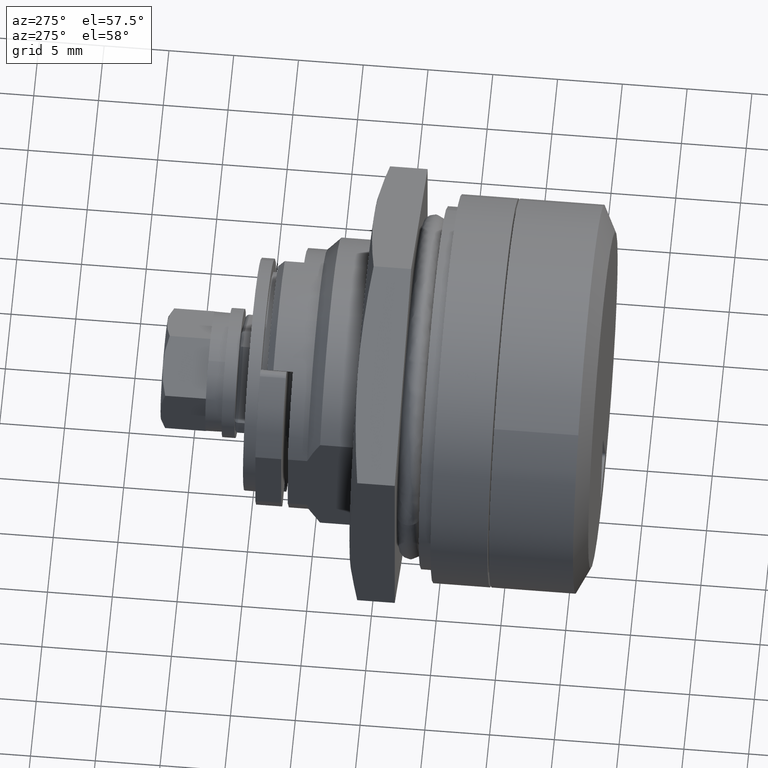
[diagram: clean part render]
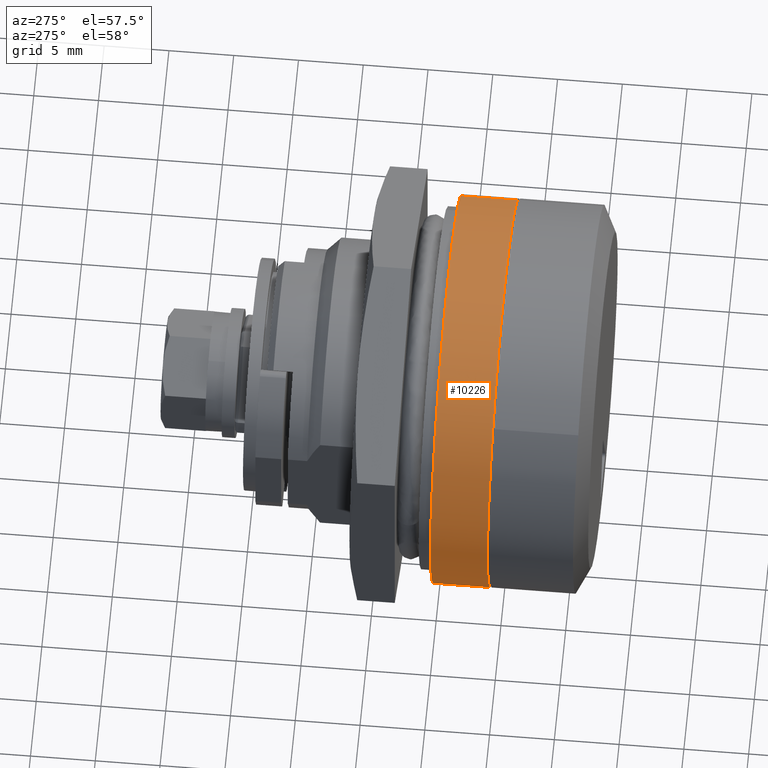
[diagram: same view with one face highlighted and labeled with its STEP entity id]
A machine part, auxiliary view. The second image highlights one B-rep face of the part: STEP entity #10226.
In plain terms, the highlighted face is a freeform B-spline surface patch.
Its self-contained STEP definition (entity closure, byte-faithful):
#10057=CARTESIAN_POINT('',(0.110000000000000,-11.453334644106969,9.686130575730378));
#10058=CARTESIAN_POINT('',(0.110000000000000,-11.176121748472719,10.013920092559346));
#10059=CARTESIAN_POINT('',(0.110000000000000,-10.880615565184311,10.325318635406310));
#10060=CARTESIAN_POINT('',(0.110000000000000,-0.555296929778004,21.205934200590622));
#10061=CARTESIAN_POINT('',(0.110000000000000,10.325318635406310,10.880615565184311));
#10062=CARTESIAN_POINT('',(0.110000000000000,21.205934200590622,0.555296929778004));
#10063=CARTESIAN_POINT('',(0.110000000000000,10.880615565184311,-10.325318635406310));
#10064=CARTESIAN_POINT('',(0.110000000000000,0.555296929778004,-21.205934200590622));
#10065=CARTESIAN_POINT('',(0.110000000000000,-10.325318635406310,-10.880615565184311));
#10066=CARTESIAN_POINT('',(-4.512750000000094,-11.453334644106969,9.686130575730378));
#10067=CARTESIAN_POINT('',(-4.512750000000093,-11.176121748472719,10.013920092559346));
#10068=CARTESIAN_POINT('',(-4.512750000000093,-10.880615565184311,10.325318635406310));
#10069=CARTESIAN_POINT('',(-4.512750000000093,-0.555296929778004,21.205934200590622));
#10070=CARTESIAN_POINT('',(-4.512750000000093,10.325318635406310,10.880615565184311));
#10071=CARTESIAN_POINT('',(-4.512750000000093,21.205934200590622,0.555296929778004));
#10072=CARTESIAN_POINT('',(-4.512750000000093,10.880615565184311,-10.325318635406310));
#10073=CARTESIAN_POINT('',(-4.512750000000093,0.555296929778004,-21.205934200590622));
#10074=CARTESIAN_POINT('',(-4.512750000000093,-10.325318635406310,-10.880615565184311));
#10082=(BOUNDED_SURFACE()B_SPLINE_SURFACE(2,1,((#10057,#10066),(#10058,#10067),(#10059,#10068),(#10060,#10069),(#10061,#10070),(#10062,#10071),(#10063,#10072),(#10064,#10073),(#10065,#10074)),.UNSPECIFIED.,.F.,.F.,.U.)B_SPLINE_SURFACE_WITH_KNOTS((3,2,2,2,3),(2,2),(0.0,0.994112549695429,25.846926292081129,50.699740034466821,75.552553776852506),(0.0,4.622750000000093),.UNSPECIFIED.)GEOMETRIC_REPRESENTATION_ITEM()RATIONAL_B_SPLINE_SURFACE(((0.977505800795127,0.977505800795127),(0.988284271247462,0.988284271247462),(1.0,1.0),(0.707106781186548,0.707106781186548),(1.0,1.0),(0.707106781186548,0.707106781186548),(1.0,1.0),(0.707106781186548,0.707106781186548),(1.0,1.0)))REPRESENTATION_ITEM('')SURFACE());
#10083=CARTESIAN_POINT('',(5.501527E-012,-11.453334942280440,9.686130766238883));
#10084=VERTEX_POINT('',#10083);
#10085=CARTESIAN_POINT('',(-2.755364E-015,0.0,15.0));
#10086=VERTEX_POINT('',#10085);
#10087=CARTESIAN_POINT('',(5.501527E-012,-11.453334942280440,9.686130766238883));
#10088=CARTESIAN_POINT('',(5.196148E-012,-10.817901486712540,10.437714305985420));
#10089=CARTESIAN_POINT('',(4.631522E-012,-9.643024702068196,11.577478154986769));
#10090=CARTESIAN_POINT('',(3.678727E-012,-7.660444631017903,12.955721269076360));
#10091=CARTESIAN_POINT('',(2.611277E-012,-5.439290175112173,14.070099384794521));
#10092=CARTESIAN_POINT('',(1.350964E-012,-2.816825873974941,14.828908261293000));
#10093=CARTESIAN_POINT('',(4.212993E-013,-0.882374870173961,15.000056497714670));
#10094=CARTESIAN_POINT('',(-2.755364E-015,0.0,15.0));
#10095=B_SPLINE_CURVE_WITH_KNOTS('',3,(#10087,#10088,#10089,#10090,#10091,#10092,#10093,#10094),.UNSPECIFIED.,.F.,.U.,(4,1,1,1,1,4),(0.000000021767436,2.952572827706318,4.887019982530774,7.228697114346827,10.384917896650590,13.032049557032190),.UNSPECIFIED.);
#10096=EDGE_CURVE('',#10084,#10086,#10095,.T.);
#10097=ORIENTED_EDGE('',*,*,#10096,.T.);
#10098=CARTESIAN_POINT('',(-2.755364E-015,14.999999999999931,-0.000001422510295));
#10099=VERTEX_POINT('',#10098);
#10100=CARTESIAN_POINT('',(-2.755364E-015,0.0,15.0));
#10101=CARTESIAN_POINT('',(-2.755364E-015,1.043112721479608,15.000144473828490));
#10102=CARTESIAN_POINT('',(-2.755364E-015,2.853149161251206,14.810414392537620));
#10103=CARTESIAN_POINT('',(-2.755364E-015,5.097109738955573,14.152143033870750));
#10104=CARTESIAN_POINT('',(-2.755364E-015,7.093930864481921,13.274363346806510));
#10105=CARTESIAN_POINT('',(-2.755364E-015,8.952233015415089,12.121484904672080));
#10106=CARTESIAN_POINT('',(-2.755364E-015,10.616331070383559,10.658981236510080));
#10107=CARTESIAN_POINT('',(-2.755364E-015,11.990756031830299,9.085282683752549));
#10108=CARTESIAN_POINT('',(-2.755364E-015,13.045778174913449,7.495821551941543));
#10109=CARTESIAN_POINT('',(-2.755364E-015,13.903020431307731,5.725609447301996));
#10110=CARTESIAN_POINT('',(-2.755364E-015,14.472976241343890,4.068866168773899));
#10111=CARTESIAN_POINT('',(-2.755364E-015,14.892050764833620,2.147546736600627));
#10112=CARTESIAN_POINT('',(-2.755364E-015,15.000059246009229,0.797668352178280));
#10113=CARTESIAN_POINT('',(-2.755364E-015,14.999999999999931,-0.000001422510295));
#10114=B_SPLINE_CURVE_WITH_KNOTS('',3,(#10100,#10101,#10102,#10103,#10104,#10105,#10106,#10107,#10108,#10109,#10110,#10111,#10112,#10113),.UNSPECIFIED.,.F.,.U.,(4,1,1,1,1,1,1,1,1,1,1,4),(0.000000062564261,3.129314197939024,5.430299691726805,6.994972318430438,9.664109063514829,11.965048990248979,13.621742754649830,15.922733961731190,17.671488051383690,19.512280872478009,21.168981380407349,23.561982665529861),.UNSPECIFIED.);
#10115=EDGE_CURVE('',#10086,#10099,#10114,.T.);
#10116=ORIENTED_EDGE('',*,*,#10115,.T.);
#10117=CARTESIAN_POINT('',(-2.755364E-015,0.0,-15.0));
#10118=VERTEX_POINT('',#10117);
#10119=CARTESIAN_POINT('',(-2.755364E-015,14.999999999999931,-0.000001422510295));
#10120=CARTESIAN_POINT('',(-2.755364E-015,15.000090257828351,-0.889711632567073));
#10121=CARTESIAN_POINT('',(-2.755364E-015,14.876775912695420,-2.270249516024686));
#10122=CARTESIAN_POINT('',(-2.755364E-015,14.399745594940500,-4.335324843317125));
#10123=CARTESIAN_POINT('',(-2.755364E-015,13.767268442571030,-6.069357613622124));
#10124=CARTESIAN_POINT('',(-2.755364E-015,12.879224925939919,-7.755528728333514));
#10125=CARTESIAN_POINT('',(-2.755364E-015,11.784118415083141,-9.351740116949021));
#10126=CARTESIAN_POINT('',(-2.755364E-015,10.322012542977941,-10.975008701289250));
#10127=CARTESIAN_POINT('',(-2.755364E-015,8.663151670127082,-12.302626194554980));
#10128=CARTESIAN_POINT('',(-2.755364E-015,6.818866053069606,-13.408018789397550));
#10129=CARTESIAN_POINT('',(-2.755364E-015,4.759347689742931,-14.305983288163469));
#10130=CARTESIAN_POINT('',(-2.755364E-015,2.362328980180929,-14.882970814177661));
#10131=CARTESIAN_POINT('',(-2.755364E-015,0.705620423915510,-15.000014237178711));
#10132=CARTESIAN_POINT('',(-2.755364E-015,0.0,-15.0));
#10133=B_SPLINE_CURVE_WITH_KNOTS('',3,(#10119,#10120,#10121,#10122,#10123,#10124,#10125,#10126,#10127,#10128,#10129,#10130,#10131,#10132),.UNSPECIFIED.,.F.,.U.,(4,1,1,1,1,1,1,1,1,1,1,4),(0.000000062627489,2.669108664335695,4.141743175538270,6.350693645249322,8.191479170864472,9.848174142569471,12.149113704570491,14.726226291334690,16.198858691282879,18.591879602525349,21.445110840149450,23.561981062026891),.UNSPECIFIED.);
#10134=EDGE_CURVE('',#10099,#10118,#10133,.T.);
#10135=ORIENTED_EDGE('',*,*,#10134,.T.);
#10136=CARTESIAN_POINT('',(-5.329643E-012,-10.325318353570299,-10.880615343041020));
#10137=VERTEX_POINT('',#10136);
#10138=CARTESIAN_POINT('',(-2.755364E-015,0.0,-15.0));
#10139=CARTESIAN_POINT('',(-4.311629E-013,-0.830399248749804,-15.000065821979140));
#10140=CARTESIAN_POINT('',(-1.119660E-012,-2.164940252950626,-14.888877744297400));
#10141=CARTESIAN_POINT('',(-2.092187E-012,-4.050028708363543,-14.474249417646631));
#10142=CARTESIAN_POINT('',(-3.021398E-012,-5.851155091850223,-13.864960591170011));
#10143=CARTESIAN_POINT('',(-4.159771E-012,-8.057708811160328,-12.756274385722810));
#10144=CARTESIAN_POINT('',(-4.930163E-012,-9.550990135608052,-11.615683931711921));
#10145=CARTESIAN_POINT('',(-5.329643E-012,-10.325318353570299,-10.880615343041020));
#10146=B_SPLINE_CURVE_WITH_KNOTS('',3,(#10138,#10139,#10140,#10141,#10142,#10143,#10144,#10145),.UNSPECIFIED.,.F.,.U.,(4,1,1,1,1,4),(0.000000015262774,2.491186251970984,4.003703874981415,5.783096003597441,8.185331182684706,11.388289876690120),.UNSPECIFIED.);
#10147=EDGE_CURVE('',#10118,#10137,#10146,.T.);
#10148=ORIENTED_EDGE('',*,*,#10147,.T.);
#10149=CARTESIAN_POINT('',(-4.400000000000091,-10.325318354013650,-10.880615342620301));
#10150=VERTEX_POINT('',#10149);
#10151=CARTESIAN_POINT('',(-5.329643E-012,-10.325318353570299,-10.880615343041020));
#10152=CARTESIAN_POINT('',(-4.400000000000091,-10.325318354013650,-10.880615342620301));
#10153=QUASI_UNIFORM_CURVE('',1,(#10151,#10152),.UNSPECIFIED.,.F.,.U.);
#10154=EDGE_CURVE('',#10137,#10150,#10153,.T.);
#10155=ORIENTED_EDGE('',*,*,#10154,.T.);
#10156=CARTESIAN_POINT('',(-4.400000000000090,0.0,-15.0));
#10157=VERTEX_POINT('',#10156);
#10158=CARTESIAN_POINT('',(-4.400000000000090,0.0,-15.0));
#10159=CARTESIAN_POINT('',(-4.400000000000095,-0.830398701765208,-15.000064743289020));
#10160=CARTESIAN_POINT('',(-4.400000000000065,-2.224254552945415,-14.883939242327060));
#10161=CARTESIAN_POINT('',(-4.400000000000109,-4.194363907206968,-14.438345801888300));
#10162=CARTESIAN_POINT('',(-4.400000000000111,-6.210635598955062,-13.722834831938330));
#10163=CARTESIAN_POINT('',(-4.400000000000036,-8.330293008214294,-12.569684059648379));
#10164=CARTESIAN_POINT('',(-4.400000000000140,-9.723006634521287,-11.452257100843889));
#10165=CARTESIAN_POINT('',(-4.400000000000091,-10.325318354013650,-10.880615342620301));
#10166=B_SPLINE_CURVE_WITH_KNOTS('',3,(#10158,#10159,#10160,#10161,#10162,#10163,#10164,#10165),.UNSPECIFIED.,.F.,.U.,(4,1,1,1,1,4),(0.000000015258678,2.491186252101599,4.181646110295810,6.050017554925931,8.897103640467570,11.388289877301350),.UNSPECIFIED.);
#10167=EDGE_CURVE('',#10157,#10150,#10166,.T.);
#10168=ORIENTED_EDGE('',*,*,#10167,.F.);
#10169=CARTESIAN_POINT('',(-4.400000000000090,14.999999999999931,-0.000001422510295));
#10170=VERTEX_POINT('',#10169);
#10171=CARTESIAN_POINT('',(-4.400000000000090,14.999999999999931,-0.000001422510295));
#10172=CARTESIAN_POINT('',(-4.400000000000080,15.000090070934871,-0.889711621880674));
#10173=CARTESIAN_POINT('',(-4.400000000000103,14.876776468265859,-2.270249549917439));
#10174=CARTESIAN_POINT('',(-4.400000000000080,14.399744594391191,-4.335324791751396));
#10175=CARTESIAN_POINT('',(-4.400000000000103,13.809426200558180,-5.953752243527472));
#10176=CARTESIAN_POINT('',(-4.400000000000061,12.872851552707360,-7.786319469064214));
#10177=CARTESIAN_POINT('',(-4.400000000000129,11.490976931848770,-9.787608525824604));
#10178=CARTESIAN_POINT('',(-4.400000000000065,9.480583475513177,-11.749287179219360));
#10179=CARTESIAN_POINT('',(-4.400000000000114,7.157437916729596,-13.260454886116801));
#10180=CARTESIAN_POINT('',(-4.400000000000239,5.041458839496981,-14.182904597532250));
#10181=CARTESIAN_POINT('',(-4.399999999999761,2.669062307327073,-14.831576640851940));
#10182=CARTESIAN_POINT('',(-4.400000000000492,1.012438914155633,-15.000159108389751));
#10183=CARTESIAN_POINT('',(-4.400000000000090,0.0,-15.0));
#10184=B_SPLINE_CURVE_WITH_KNOTS('',3,(#10171,#10172,#10173,#10174,#10175,#10176,#10177,#10178,#10179,#10180,#10181,#10182,#10183),.UNSPECIFIED.,.F.,.U.,(4,1,1,1,1,1,1,1,1,1,4),(0.000000062627489,2.669108664335695,4.141743175538270,6.350693645249322,7.823328528863511,10.308386206756200,13.621741827271929,16.198858691282879,18.591879602525349,20.524706105658531,23.561981062026891),.UNSPECIFIED.);
#10185=EDGE_CURVE('',#10170,#10157,#10184,.T.);
#10186=ORIENTED_EDGE('',*,*,#10185,.F.);
#10187=CARTESIAN_POINT('',(-4.400000000000090,0.0,15.0));
#10188=VERTEX_POINT('',#10187);
#10189=CARTESIAN_POINT('',(-4.400000000000090,0.0,15.0));
#10190=CARTESIAN_POINT('',(-4.400000000000087,1.043112721478718,15.000144473828399));
#10191=CARTESIAN_POINT('',(-4.400000000000100,2.853149161253899,14.810414392537909));
#10192=CARTESIAN_POINT('',(-4.400000000000084,5.097109678707075,14.152142991525761));
#10193=CARTESIAN_POINT('',(-4.400000000000073,7.093931280773886,13.274363639402811));
#10194=CARTESIAN_POINT('',(-4.400000000000153,8.952231533164024,12.121483863594300));
#10195=CARTESIAN_POINT('',(-4.400000000000031,10.616326428715100,10.658977999723900));
#10196=CARTESIAN_POINT('',(-4.400000000000123,12.051420156317869,9.015871515430456));
#10197=CARTESIAN_POINT('',(-4.400000000000081,13.260460957080049,7.157452206921574));
#10198=CARTESIAN_POINT('',(-4.400000000000077,14.269047681235611,4.843980409427916));
#10199=CARTESIAN_POINT('',(-4.400000000000173,14.867566885162780,2.454351385103728));
#10200=CARTESIAN_POINT('',(-4.399999999999993,15.000045869111149,0.797666540224848));
#10201=CARTESIAN_POINT('',(-4.400000000000090,14.999999999999931,-0.000001422510295));
#10202=B_SPLINE_CURVE_WITH_KNOTS('',3,(#10189,#10190,#10191,#10192,#10193,#10194,#10195,#10196,#10197,#10198,#10199,#10200,#10201),.UNSPECIFIED.,.F.,.U.,(4,1,1,1,1,1,1,1,1,1,4),(0.000000062564261,3.129314197939024,5.430299691726805,6.994972318430438,9.664109063514829,11.965048990248979,13.621742754649830,16.198859794083500,18.591880868000789,21.168981380407349,23.561982665529861),.UNSPECIFIED.);
#10203=EDGE_CURVE('',#10188,#10170,#10202,.T.);
#10204=ORIENTED_EDGE('',*,*,#10203,.F.);
#10205=CARTESIAN_POINT('',(-4.400000000000091,-11.453334941908730,9.686130766678410));
#10206=VERTEX_POINT('',#10205);
#10207=CARTESIAN_POINT('',(-4.400000000000091,-11.453334941908730,9.686130766678410));
#10208=CARTESIAN_POINT('',(-4.400000000000088,-11.015057002741800,10.204409893309229));
#10209=CARTESIAN_POINT('',(-4.400000000000088,-10.067978263338119,11.181323903447129));
#10210=CARTESIAN_POINT('',(-4.400000000000098,-8.542433218170633,12.378015047654980));
#10211=CARTESIAN_POINT('',(-4.400000000000107,-6.792599520793891,13.425998599375569));
#10212=CARTESIAN_POINT('',(-4.400000000000024,-4.945759088972673,14.215254525770019));
#10213=CARTESIAN_POINT('',(-4.400000000000204,-2.613141985998106,14.839050545981330));
#10214=CARTESIAN_POINT('',(-4.399999999999985,-0.984202182056179,15.000138687960440));
#10215=CARTESIAN_POINT('',(-4.400000000000090,0.0,15.0));
#10216=B_SPLINE_CURVE_WITH_KNOTS('',3,(#10207,#10208,#10209,#10210,#10211,#10212,#10213,#10214,#10215),.UNSPECIFIED.,.F.,.U.,(4,1,1,1,1,1,4),(0.000000021765787,2.036248671946918,4.072515940481148,5.803352464208569,8.145029595923175,10.079476750653329,13.032049556456551),.UNSPECIFIED.);
#10217=EDGE_CURVE('',#10206,#10188,#10216,.T.);
#10218=ORIENTED_EDGE('',*,*,#10217,.F.);
#10219=CARTESIAN_POINT('',(5.501527E-012,-11.453334942280440,9.686130766238883));
#10220=CARTESIAN_POINT('',(-4.400000000000091,-11.453334941908730,9.686130766678410));
#10221=QUASI_UNIFORM_CURVE('',1,(#10219,#10220),.UNSPECIFIED.,.F.,.U.);
#10222=EDGE_CURVE('',#10084,#10206,#10221,.T.);
#10223=ORIENTED_EDGE('',*,*,#10222,.F.);
#10224=EDGE_LOOP('',(#10097,#10116,#10135,#10148,#10155,#10168,#10186,#10204,#10218,#10223));
#10225=FACE_OUTER_BOUND('',#10224,.T.);
#10226=ADVANCED_FACE('',(#10225),#10082,.T.);